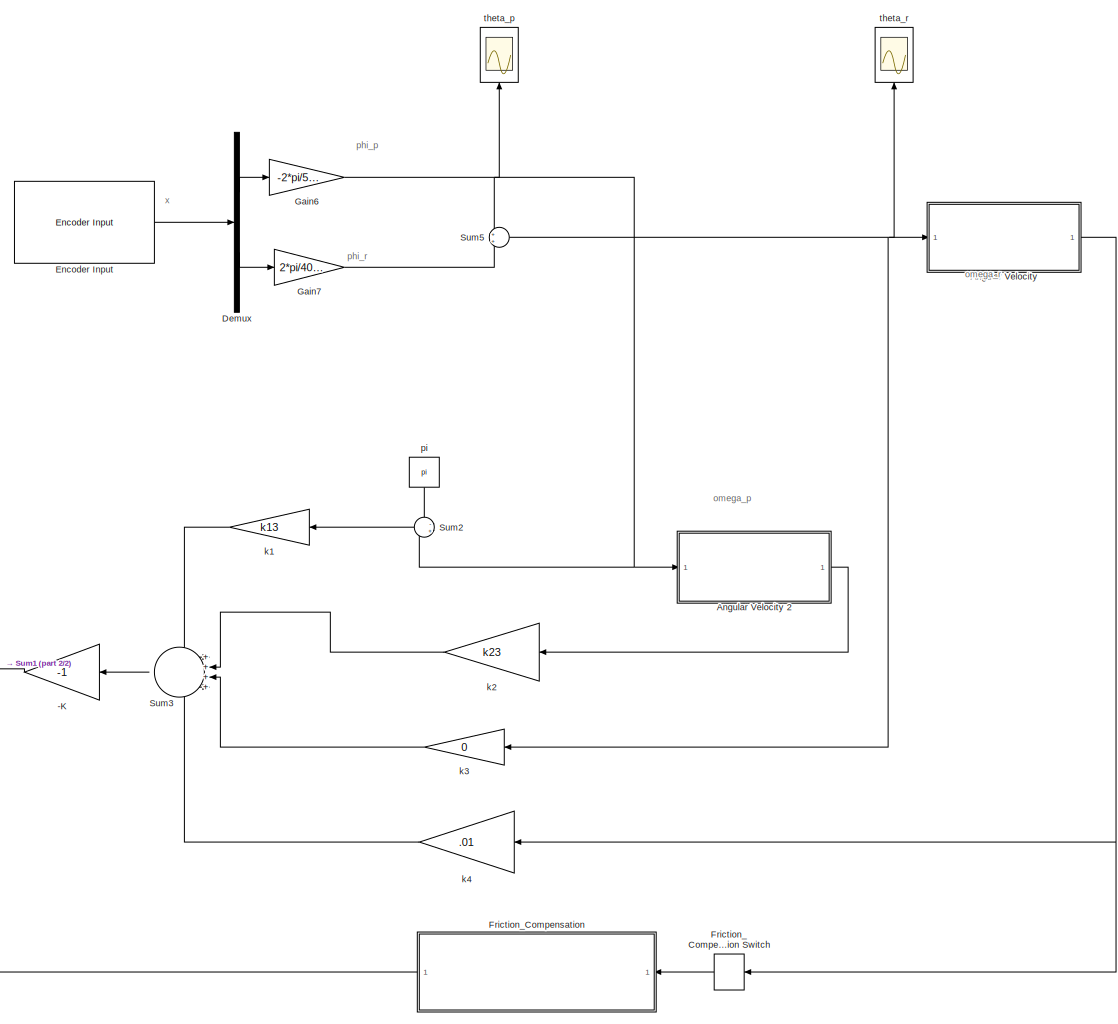
[diagram: root canvas - part 1/2, center side, full height]
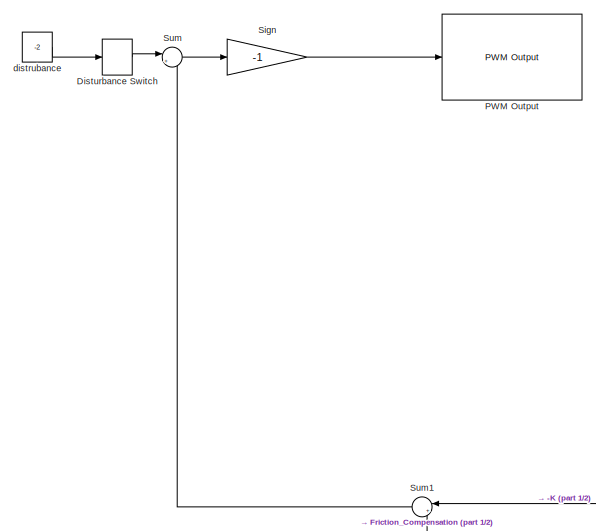
[diagram: root canvas - part 2/2, middle left region]
MODEL slx_a3e4121b9ab3
KIND model
CONFIG AbsTol = auto
CONFIG EnableMultiTasking = on
CONFIG FixedStep = auto
CONFIG MaxStep = auto
CONFIG MinStep = auto
CONFIG RelTol = 1e-3
CONFIG SampleTimeConstraint = Unconstrained
CONFIG Solver = ode45
CONFIG SolverName = ode45
CONFIG StartTime = 0.0
CONFIG StopTime = 10.0
BLOCK [Gain] -K
  Gain = -1
  OutDataTypeStr = Inherit: Inherit via internal rule
  ParamDataTypeStr = Inherit: Inherit via internal rule
  SaturateOnIntegerOverflow = off
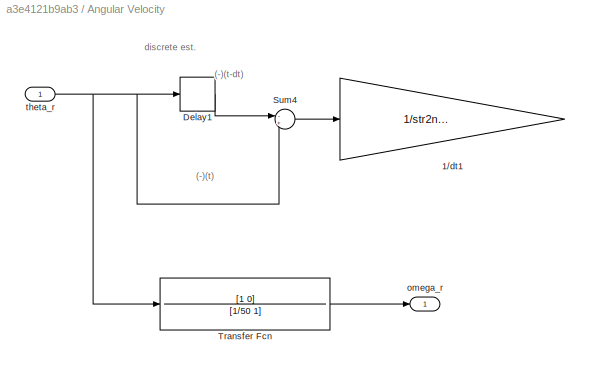
BLOCK [SubSystem] Angular Velocity
  Ports = [1, 1]
  RequestExecContextInheritance = off
  Variant = off
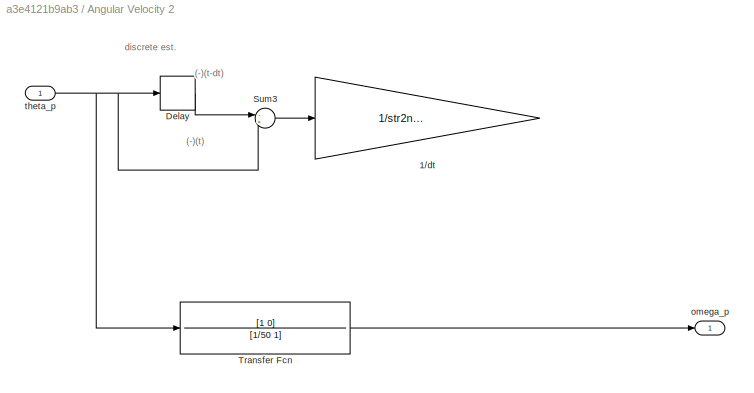
BLOCK [SubSystem] Angular Velocity 2
  Ports = [1, 1]
  RequestExecContextInheritance = off
  Variant = off
BLOCK [Gain] Angular Velocity 2/1//dt
  Gain = 1/str2num(get_param(bdroot,'FixedStep'))
  OutDataTypeStr = Inherit: Inherit via internal rule
  ParamDataTypeStr = Inherit: Inherit via internal rule
  SaturateOnIntegerOverflow = off
BLOCK [Delay] Angular Velocity 2/Delay
  DelayLength = 1
  InitialCondition = 0
  InputPortMap = u0
  Ports = [1, 1]
BLOCK [Sum] Angular Velocity 2/Sum3
  IconShape = round
  InputSameDT = off
  Inputs = -+
  OutDataTypeStr = Inherit: Inherit via internal rule
  Ports = [2, 1]
  SaturateOnIntegerOverflow = off
BLOCK [TransferFcn] Angular Velocity 2/Transfer Fcn
  Denominator = [1/50 1]
  Numerator = [1 0]
BLOCK [Outport] Angular Velocity 2/omega_p
  IconDisplay = Port number
BLOCK [Inport] Angular Velocity 2/theta_p
  IconDisplay = Port number
BLOCK [Gain] Angular Velocity/1//dt1
  Gain = 1/str2num(get_param(bdroot,'FixedStep'))
  OutDataTypeStr = Inherit: Inherit via internal rule
  ParamDataTypeStr = Inherit: Inherit via internal rule
  SaturateOnIntegerOverflow = off
BLOCK [Delay] Angular Velocity/Delay1
  DelayLength = 1
  InitialCondition = 0
  InputPortMap = u0
  Ports = [1, 1]
BLOCK [Sum] Angular Velocity/Sum4
  IconShape = round
  InputSameDT = off
  Inputs = -+
  OutDataTypeStr = Inherit: Inherit via internal rule
  Ports = [2, 1]
  SaturateOnIntegerOverflow = off
BLOCK [TransferFcn] Angular Velocity/Transfer Fcn
  Denominator = [1/50 1]
  Numerator = [1 0]
BLOCK [Outport] Angular Velocity/omega_r
  IconDisplay = Port number
BLOCK [Inport] Angular Velocity/theta_r
  IconDisplay = Port number
BLOCK [Demux] Demux
  DisplayOption = bar
  Outputs = 2
  Ports = [1, 2]
BLOCK [ManualSwitch] Disturbance Switch
  CurrentSetting = 0
BLOCK [Reference] Encoder Input  REF=c6xlib/Encoder Input
  Ports = [0, 1]
  SourceBlock = c6xlib/Encoder Input
  SourceType = Encoder Input Module
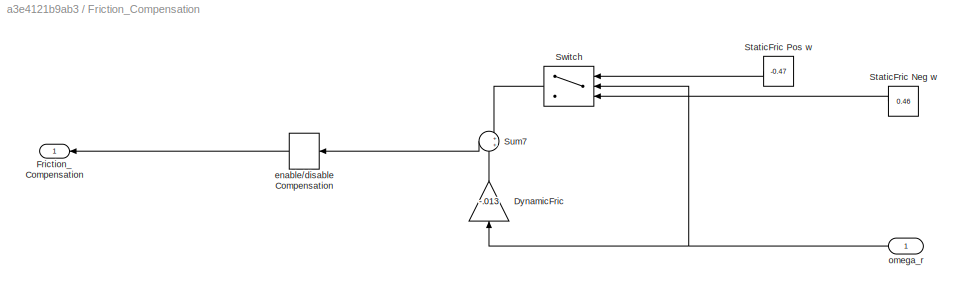
BLOCK [SubSystem] Friction_Compensation
  Ports = [1, 1]
  RequestExecContextInheritance = off
  Variant = off
BLOCK [ManualSwitch] Friction_Compensation Switch
  CurrentSetting = 0
BLOCK [Gain] Friction_Compensation/DynamicFric
  Gain = -.013
  OutDataTypeStr = Inherit: Inherit via internal rule
  ParamDataTypeStr = Inherit: Inherit via internal rule
  SaturateOnIntegerOverflow = off
BLOCK [Outport] Friction_Compensation/Friction_Compensation
  IconDisplay = Port number
BLOCK [Constant] Friction_Compensation/StaticFric Neg w 
  Value = 0.46
BLOCK [Constant] Friction_Compensation/StaticFric Pos w
  Value = -0.47
BLOCK [Sum] Friction_Compensation/Sum7
  IconShape = round
  InputSameDT = off
  OutDataTypeStr = Inherit: Inherit via internal rule
  Ports = [2, 1]
  SaturateOnIntegerOverflow = off
BLOCK [Switch] Friction_Compensation/Switch
  InputSameDT = off
  SaturateOnIntegerOverflow = off
BLOCK [ManualSwitch] Friction_Compensation/enable//disable Compensation
BLOCK [Inport] Friction_Compensation/omega_r
  IconDisplay = Port number
BLOCK [Gain] Gain6
  Gain = -2*pi/5000
  OutDataTypeStr = Inherit: Inherit via internal rule
  ParamDataTypeStr = Inherit: Inherit via internal rule
  SaturateOnIntegerOverflow = off
BLOCK [Gain] Gain7
  Gain = 2*pi/4000
  OutDataTypeStr = Inherit: Inherit via internal rule
  ParamDataTypeStr = Inherit: Inherit via internal rule
  SaturateOnIntegerOverflow = off
BLOCK [Reference] PWM Output  REF=c6xlib/PWM Output
  Ports = [1]
  SourceBlock = c6xlib/PWM Output
  SourceType = PWM Output Module
BLOCK [Gain] Sign
  Gain = -1
  OutDataTypeStr = Inherit: Inherit via internal rule
  ParamDataTypeStr = Inherit: Inherit via internal rule
  SaturateOnIntegerOverflow = off
BLOCK [Sum] Sum
  IconShape = round
  InputSameDT = off
  Inputs = |++
  OutDataTypeStr = Inherit: Inherit via internal rule
  Ports = [2, 1]
  SaturateOnIntegerOverflow = off
BLOCK [Sum] Sum1
  IconShape = round
  InputSameDT = off
  Inputs = |++
  OutDataTypeStr = Inherit: Inherit via internal rule
  Ports = [2, 1]
  SaturateOnIntegerOverflow = off
BLOCK [Sum] Sum2
  IconShape = round
  InputSameDT = off
  Inputs = -+
  OutDataTypeStr = Inherit: Inherit via internal rule
  Ports = [2, 1]
  SaturateOnIntegerOverflow = off
BLOCK [Sum] Sum3
  IconShape = round
  InputSameDT = off
  Inputs = ++++
  OutDataTypeStr = Inherit: Inherit via internal rule
  Ports = [4, 1]
  SaturateOnIntegerOverflow = off
BLOCK [Sum] Sum5
  IconShape = round
  InputSameDT = off
  OutDataTypeStr = Inherit: Inherit via internal rule
  Ports = [2, 1]
  SaturateOnIntegerOverflow = off
BLOCK [Constant] distrubance
  Value = -2
BLOCK [Gain] k1 
  Gain = k13
  OutDataTypeStr = Inherit: Inherit via internal rule
  ParamDataTypeStr = Inherit: Inherit via internal rule
  SaturateOnIntegerOverflow = off
BLOCK [Gain] k2 
  Gain = k23
  OutDataTypeStr = Inherit: Inherit via internal rule
  ParamDataTypeStr = Inherit: Inherit via internal rule
  SaturateOnIntegerOverflow = off
BLOCK [Gain] k3
  Gain = 0
  OutDataTypeStr = Inherit: Inherit via internal rule
  ParamDataTypeStr = Inherit: Inherit via internal rule
  SaturateOnIntegerOverflow = off
BLOCK [Gain] k4
  Gain = .01
  OutDataTypeStr = Inherit: Inherit via internal rule
  ParamDataTypeStr = Inherit: Inherit via internal rule
  SaturateOnIntegerOverflow = off
BLOCK [Constant] pi
  Value = pi
BLOCK [Scope] theta_p
  NumInputPorts = 1
  Ports = [1]
  ScopeSpecificationString = Simulink.scopes.TimeScopeBlockCfg('CurrentConfiguration', extmgr.ConfigurationSet(extmgr.Configuration('Core','General UI',true),extmgr.Configuration('Core','Source UI',true),extmgr.Configuration('Sources','WiredSimulink',true,'DataLoggingVariableName','theta_p','DataLogging',true,'DataLoggingSaveFormat','Array'),extmgr.Configuration('Visuals','Time Domain',true,'SerializedDisplays',{struct('MinYL...<+1766ch>
BLOCK [Scope] theta_r
  NumInputPorts = 1
  Ports = [1]
  ScopeSpecificationString = Simulink.scopes.TimeScopeBlockCfg('CurrentConfiguration', extmgr.ConfigurationSet(extmgr.Configuration('Core','General UI',true),extmgr.Configuration('Core','Source UI',true),extmgr.Configuration('Sources','WiredSimulink',true,'DataLoggingVariableName','theta_r','DataLogging',true,'DataLoggingSaveFormat','Array'),extmgr.Configuration('Visuals','Time Domain',true,'SerializedDisplays',{struct('MinYL...<+1489ch>
ANNOTATION (root): omega_p
ANNOTATION (root): omega_r
ANNOTATION (root): phi_p
ANNOTATION (root): phi_r
ANNOTATION (root): x
ANNOTATION Angular Velocity: (-)(t)
ANNOTATION Angular Velocity: (-)(t-dt)
ANNOTATION Angular Velocity: discrete est.
ANNOTATION Angular Velocity 2: (-)(t)
ANNOTATION Angular Velocity 2: (-)(t-dt)
ANNOTATION Angular Velocity 2: discrete est.
LINE -K:1 -> Sum1:1
LINE Angular Velocity 2/Delay:1 -> Angular Velocity 2/Sum3:1
LINE Angular Velocity 2/Sum3:1 -> Angular Velocity 2/1//dt:1
LINE Angular Velocity 2/Transfer Fcn:1 -> Angular Velocity 2/omega_p:1
NET Angular Velocity 2/theta_p:1 -> Angular Velocity 2/Delay:1, Angular Velocity 2/Sum3:2, Angular Velocity 2/Transfer Fcn:1
LINE Angular Velocity 2:1 -> k2 :1
LINE Angular Velocity/Delay1:1 -> Angular Velocity/Sum4:1
LINE Angular Velocity/Sum4:1 -> Angular Velocity/1//dt1:1
LINE Angular Velocity/Transfer Fcn:1 -> Angular Velocity/omega_r:1
NET Angular Velocity/theta_r:1 -> Angular Velocity/Delay1:1, Angular Velocity/Sum4:2, Angular Velocity/Transfer Fcn:1
NET Angular Velocity:1 -> Friction_Compensation Switch:1, k4:1
LINE Demux:1 -> Gain6:1
LINE Demux:2 -> Gain7:1
LINE Disturbance Switch:1 -> Sum:1
LINE Encoder Input:1 -> Demux:1
LINE Friction_Compensation Switch:1 -> Friction_Compensation:1
LINE Friction_Compensation/DynamicFric:1 -> Friction_Compensation/Sum7:2
LINE Friction_Compensation/StaticFric Neg w :1 -> Friction_Compensation/Switch:3
LINE Friction_Compensation/StaticFric Pos w:1 -> Friction_Compensation/Switch:1
LINE Friction_Compensation/Sum7:1 -> Friction_Compensation/enable//disable Compensation:1
LINE Friction_Compensation/Switch:1 -> Friction_Compensation/Sum7:1
LINE Friction_Compensation/enable//disable Compensation:1 -> Friction_Compensation/Friction_Compensation:1
NET Friction_Compensation/omega_r:1 -> Friction_Compensation/DynamicFric:1, Friction_Compensation/Switch:2
LINE Friction_Compensation:1 -> Sum1:2
NET Gain6:1 -> Angular Velocity 2:1, Sum2:2, Sum5:1, theta_p:1
LINE Gain7:1 -> Sum5:2
LINE Sign:1 -> PWM Output:1
LINE Sum1:1 -> Sum:2
LINE Sum2:1 -> k1 :1
LINE Sum3:1 -> -K:1
NET Sum5:1 -> Angular Velocity:1, k3:1, theta_r:1
LINE Sum:1 -> Sign:1
LINE distrubance:1 -> Disturbance Switch:1
LINE k1 :1 -> Sum3:1
LINE k2 :1 -> Sum3:2
LINE k3:1 -> Sum3:3
LINE k4:1 -> Sum3:4
LINE pi:1 -> Sum2:1
note: NET lines group one-source signal fan-out (src -> all destinations, sorted); 1:1 wires keep LINE
